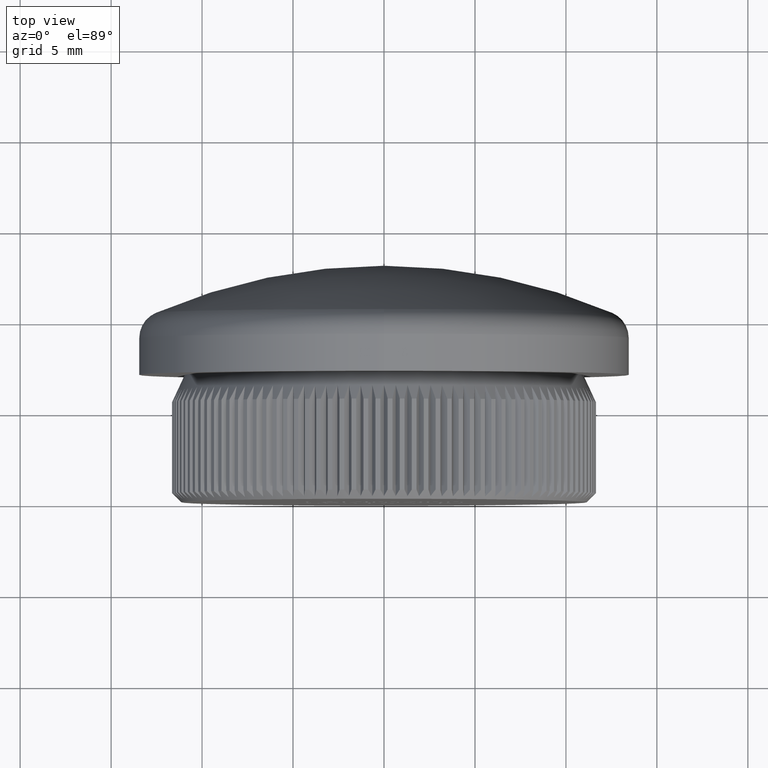
[diagram: clean part render]
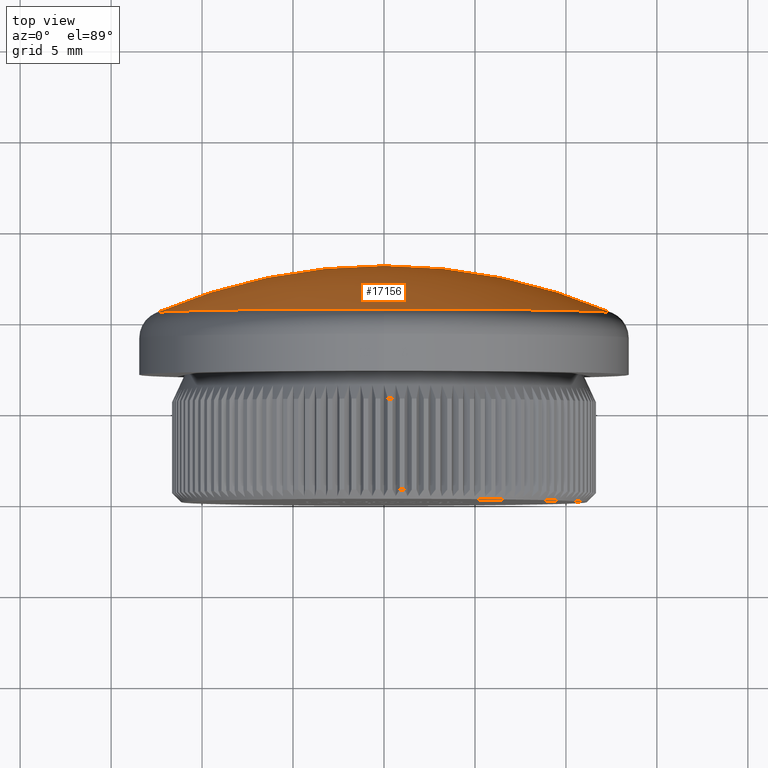
[diagram: same view with one face highlighted and labeled with its STEP entity id]
A machine part, top view. The second image highlights one B-rep face of the part: STEP entity #17156.
In plain terms, the highlighted spherical surface has radius 31.6504 mm.
Its self-contained STEP definition (entity closure, byte-faithful):
#860 = AXIS2_PLACEMENT_3D ( 'NONE', #7696, #9724, #20986 ) ;
#1321 = CIRCLE ( 'NONE', #12216, 31.65041666666673600 ) ;
#1972 = VERTEX_POINT ( 'NONE', #23249 ) ;
#2461 = CARTESIAN_POINT ( 'NONE',  ( 0.0000000000000000000, -18.65041666666673900, 0.0000000000000000000 ) ) ;
#3494 = VERTEX_POINT ( 'NONE', #10699 ) ;
#4045 = EDGE_CURVE ( 'NONE', #15746, #1972, #4945, .T. ) ;
#4298 = AXIS2_PLACEMENT_3D ( 'NONE', #13797, #9946, #4573 ) ;
#4354 = DIRECTION ( 'NONE',  ( 0.0000000000000000000, 0.0000000000000000000, -1.000000000000000000 ) ) ;
#4573 = DIRECTION ( 'NONE',  ( 1.000000000000000000, 0.0000000000000000000, 0.0000000000000000000 ) ) ;
#4945 = CIRCLE ( 'NONE', #6850, 12.54451914705435000 ) ;
#5953 = CARTESIAN_POINT ( 'NONE',  ( 0.0000000000000000000, 10.40786811655475900, 0.0000000000000000000 ) ) ;
#6850 = AXIS2_PLACEMENT_3D ( 'NONE', #5953, #20676, #18785 ) ;
#7556 = EDGE_CURVE ( 'NONE', #1972, #18122, #18158, .T. ) ;
#7696 = CARTESIAN_POINT ( 'NONE',  ( 0.0000000000000000000, 10.40786811655475900, 0.0000000000000000000 ) ) ;
#9628 = EDGE_CURVE ( 'NONE', #3494, #18122, #10485, .T. ) ;
#9724 = DIRECTION ( 'NONE',  ( 0.0000000000000000000, 1.000000000000000000, 0.0000000000000000000 ) ) ;
#9946 = DIRECTION ( 'NONE',  ( 0.0000000000000000000, 0.0000000000000000000, 1.000000000000000000 ) ) ;
#10485 = CIRCLE ( 'NONE', #15744, 31.65041666666673600 ) ;
#10699 = CARTESIAN_POINT ( 'NONE',  ( 1.938029073125673000E-015, 12.99999999999999800, 0.0000000000000000000 ) ) ;
#11128 = FACE_OUTER_BOUND ( 'NONE', #12568, .T. ) ;
#11387 = CARTESIAN_POINT ( 'NONE',  ( -12.54451914705435600, 10.40786811655475900, 1.536260522028280300E-015 ) ) ;
#12216 = AXIS2_PLACEMENT_3D ( 'NONE', #22811, #20772, #20602 ) ;
#12568 = EDGE_LOOP ( 'NONE', ( #15321, #15915, #23762, #12983 ) ) ;
#12983 = ORIENTED_EDGE ( 'NONE', *, *, #7556, .T. ) ;
#13272 = CARTESIAN_POINT ( 'NONE',  ( 12.54451914705435600, 10.40786811655475900, 0.0000000000000000000 ) ) ;
#13797 = CARTESIAN_POINT ( 'NONE',  ( 0.0000000000000000000, -18.65041666666673900, 0.0000000000000000000 ) ) ;
#15321 = ORIENTED_EDGE ( 'NONE', *, *, #9628, .F. ) ;
#15657 = DIRECTION ( 'NONE',  ( -1.000000000000000000, 0.0000000000000000000, 0.0000000000000000000 ) ) ;
#15744 = AXIS2_PLACEMENT_3D ( 'NONE', #2461, #4354, #15657 ) ;
#15746 = VERTEX_POINT ( 'NONE', #11387 ) ;
#15915 = ORIENTED_EDGE ( 'NONE', *, *, #18849, .T. ) ;
#17156 = ADVANCED_FACE ( 'NONE', ( #11128 ), #17613, .T. ) ;
#17613 = SPHERICAL_SURFACE ( 'NONE', #4298, 31.65041666666673600 ) ;
#18122 = VERTEX_POINT ( 'NONE', #13272 ) ;
#18158 = CIRCLE ( 'NONE', #860, 12.54451914705435000 ) ;
#18785 = DIRECTION ( 'NONE',  ( 0.0000000000000000000, 0.0000000000000000000, -1.000000000000000000 ) ) ;
#18849 = EDGE_CURVE ( 'NONE', #3494, #15746, #1321, .T. ) ;
#20602 = DIRECTION ( 'NONE',  ( 1.000000000000000000, 0.0000000000000000000, -1.224646799147353200E-016 ) ) ;
#20676 = DIRECTION ( 'NONE',  ( 0.0000000000000000000, 1.000000000000000000, 0.0000000000000000000 ) ) ;
#20772 = DIRECTION ( 'NONE',  ( 1.224646799147353200E-016, -0.0000000000000000000, 1.000000000000000000 ) ) ;
#20986 = DIRECTION ( 'NONE',  ( 0.0000000000000000000, 0.0000000000000000000, -1.000000000000000000 ) ) ;
#22811 = CARTESIAN_POINT ( 'NONE',  ( 0.0000000000000000000, -18.65041666666673900, 0.0000000000000000000 ) ) ;
#23249 = CARTESIAN_POINT ( 'NONE',  ( 1.591705233440734600E-015, 10.40786811655475900, 12.54451914705435000 ) ) ;
#23762 = ORIENTED_EDGE ( 'NONE', *, *, #4045, .T. ) ;